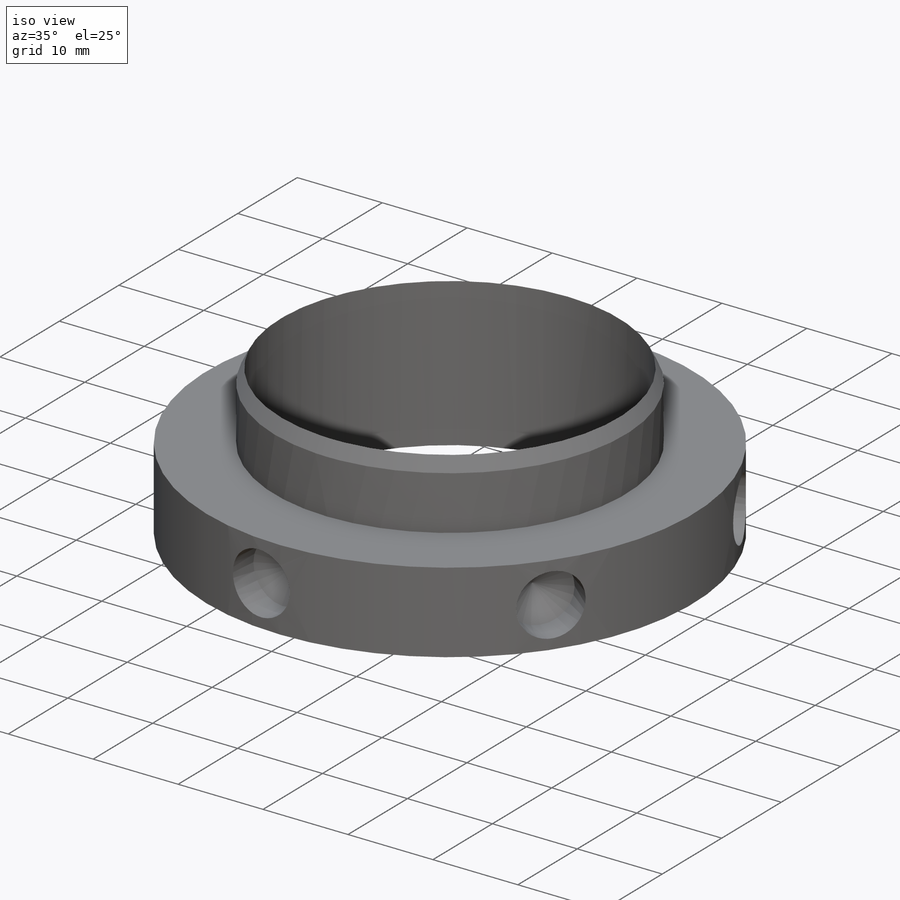
[diagram: iso view]
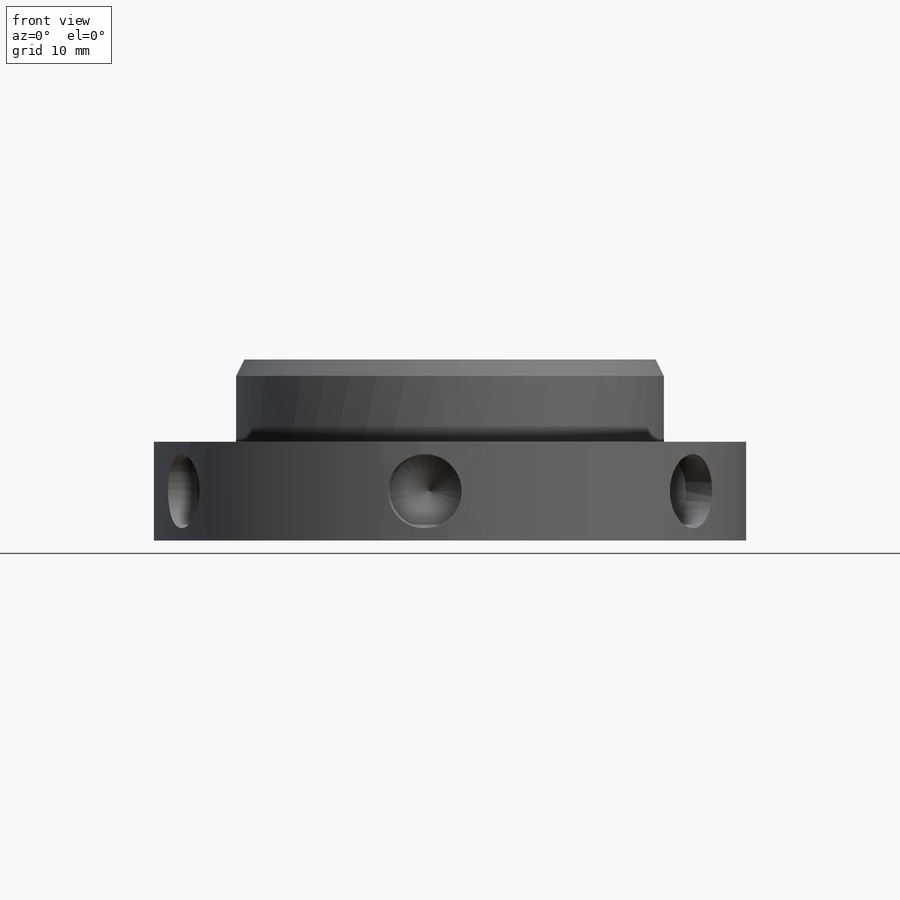
[diagram: front view]
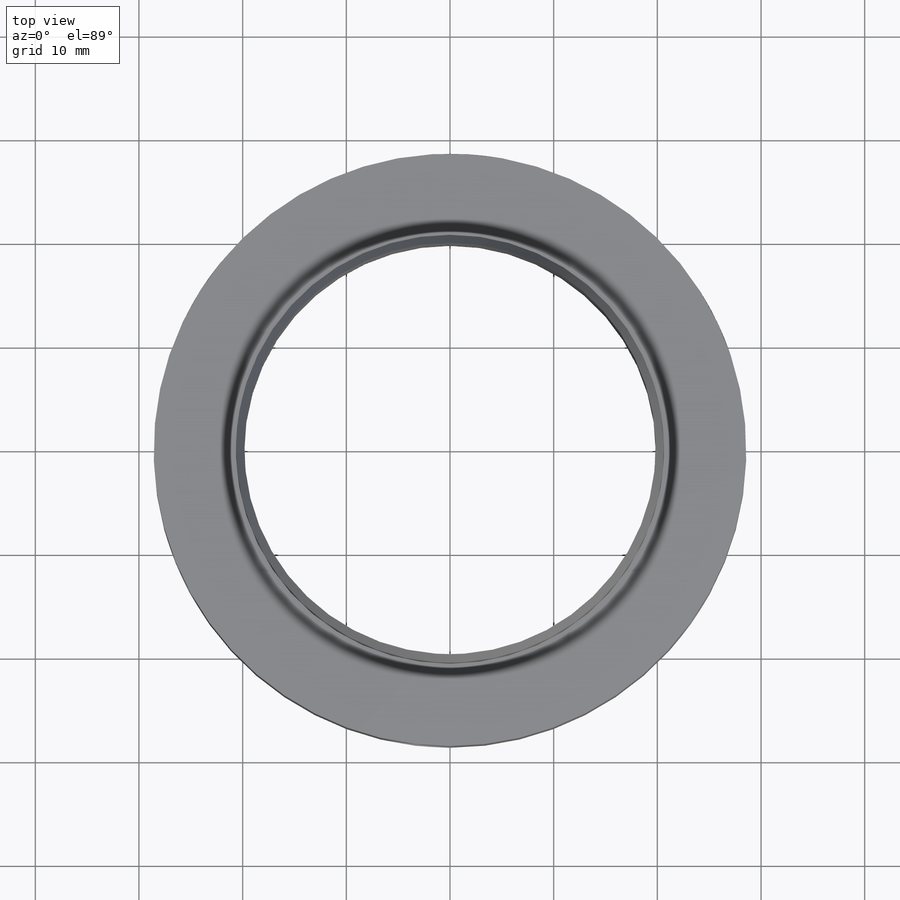
[diagram: top view]
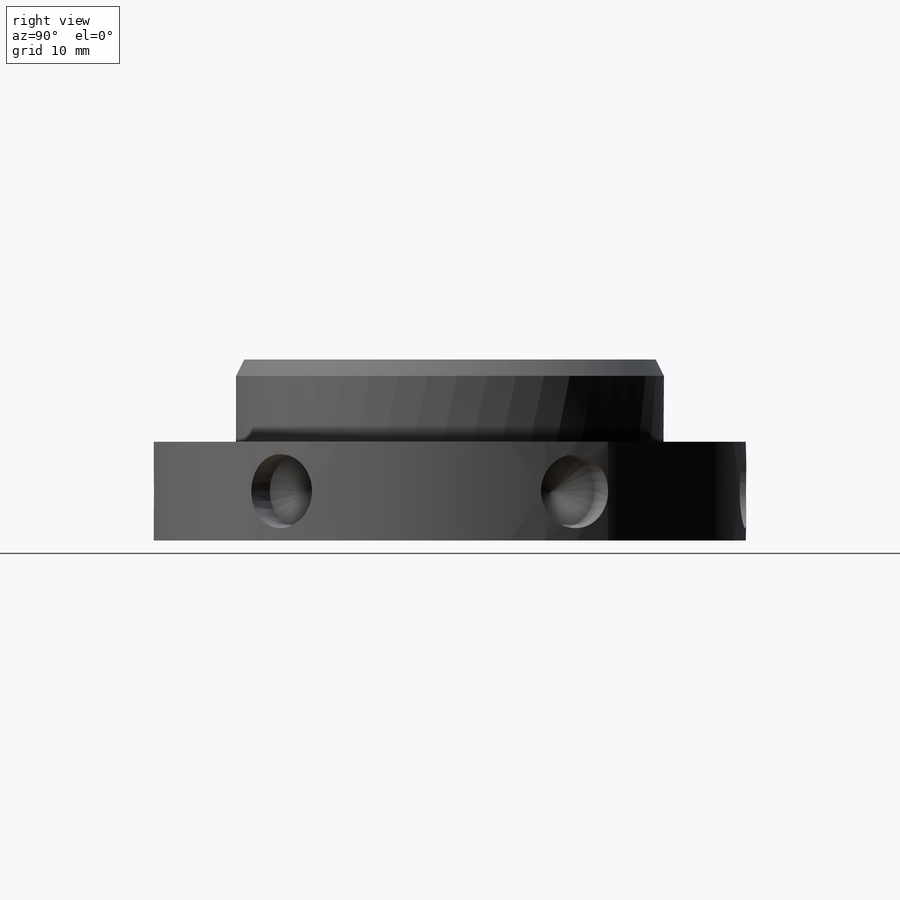
[diagram: right view]
SOLIDWORKS PART (.sldprt)
format: sldprt  version: not decoded by parser v0  size: 304,640 bytes
history: native  units: mm
features: sketch x3, material x1, revolve x1, hole x1, pattern_circular x1 (+11 scaffold rows collapsed)
feature tree (18):
  scaffold x11  (default folders/planes/origin — collapsed)
  material  "6061 Alloy"
  sketch  "Sketch1"  dims[c1.D1=19.05mm c1.D2=7.9375mm c1.D3=11.1125mm c1.D4=1.5875mm c1.D5=~6.338013mm c1.D6=20.6375mm c2.D5=9.525mm c2.D3=17.4625mm c2.D4=1.5875mm c2.D2=28.575mm c2.D1=~0.79375mm]
  revolve  "Revolve1"  Angle=360deg
  hole  "9/32 (0.28125) Diameter Hole1"  Diameter=7.14375mm Depth=3.302mm
  sketch  "3DSketch1"  dims[D1=4.7625mm]
  sketch  "Sketch2"  dims[hole-wizard template sketch: 46 standard entries collapsed; hole parameters kept: c15.Hole Dia.=~7.14375mm c15.Hole Depth=3.302mm c15.D3=~14.816244mm c15.Drill Angle=118.0deg]
  pattern_circular  "CirPattern1"  Count=6 Angle=360deg
decode coverage: 6 of 6 modeling features carry decoded parameters
note: ~ marks probable driven/reference dimensions
note: suppression state not decoded; provenance and decode notes live in map.json
